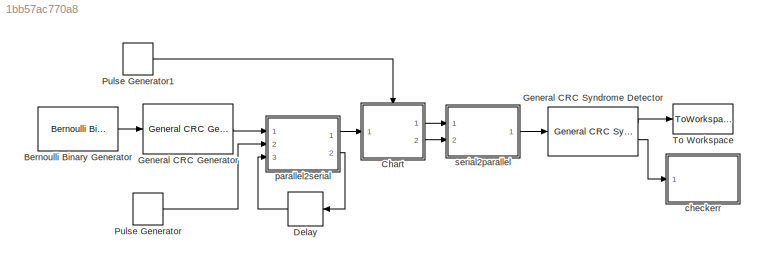
MODEL slx_1bb57ac770a8
KIND model
BLOCK [Reference] Bernoulli Binary Generator  REF=commrandsrc2/Bernoulli Binary
Generator
  P = 0.5
  Ports = [0, 1]
  SourceBlock = commrandsrc2/Bernoulli Binary\nGenerator
  SourceType = Bernoulli Binary Generator
  Ts = 1
  frameBased = on
  orient = off
  outDataType = double
  sampPerFrame = 64
  seed = 61
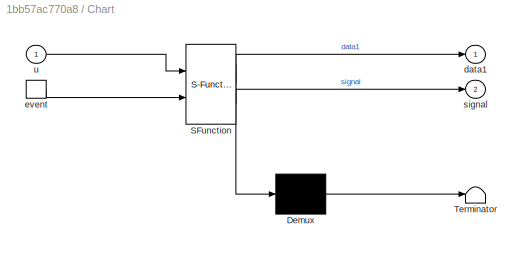
BLOCK [SubSystem] Chart
  ErrorFcn = Stateflow.Translate.translate
  FunctionWithSeparateData = off
  MaskHideContents = off
  MinAlgLoopOccurrences = off
  Opaque = off
  PermitHierarchicalResolution = ExplicitOnly
  Ports = [1, 2, 0, 1]
  PropExecContextOutsideSubsystem = off
  RTWSystemCode = Auto
  RequestExecContextInheritance = off
  SFBlockType = Chart
  TreatAsAtomicUnit = on
BLOCK [Demux] Chart/ Demux 
  Outputs = 1
  Ports = [1, 1]
BLOCK [S-Function] Chart/ SFunction 
  EnableBusSupport = on
  FunctionName = sf_sfun
  PortCounts = [2 3]
  Ports = [2, 3]
  Tag = Stateflow S-Function serialreceiver 1
BLOCK [Terminator] Chart/ Terminator 
BLOCK [Outport] Chart/data1
  IconDisplay = Port number
BLOCK [TriggerPort] Chart/event
  Ports = [0, 1]
  ShowOutputPort = on
  StatesWhenEnabling = held
BLOCK [Outport] Chart/signal
  IconDisplay = Port number
  Port = 2
BLOCK [Inport] Chart/u
  IconDisplay = Port number
BLOCK [Delay] Delay
  DelayLength = 1
  InputPortMap = u0
  Ports = [1, 1]
BLOCK [Reference] General CRC Generator  REF=commcrc2/General CRC
Generator
  Ports = [1, 1]
  SourceBlock = commcrc2/General CRC\nGenerator
  SourceType = General CRC Generator
  directMethod = off
  finalXOR = 0
  genPoly = [1 0 0 0 1 0 0 0 0 0 0 1 0 0 0 0 1]
  iniStates = 0
  numChecksums = 1
  reflectChecksums = off
  reflectInputBytes = off
BLOCK [Reference] General CRC Syndrome Detector  REF=commcrc2/General CRC
Syndrome
Detector
  Ports = [1, 2]
  SourceBlock = commcrc2/General CRC\nSyndrome\nDetector
  SourceType = General CRC Syndrome Detector
  directMethod = off
  finalXOR = 0
  genPoly = [1 0 0 0 1 0 0 0 0 0 0 1 0 0 0 0 1]
  iniStates = 0
  numChecksums = 1
  reflectChecksums = off
  reflectInputBytes = off
BLOCK [DiscretePulseGenerator] Pulse Generator
  Period = 300
  PhaseDelay = 10
  Ports = [0, 1]
  SampleTime = 0.01
BLOCK [DiscretePulseGenerator] Pulse Generator1
  Ports = [0, 1]
  SampleTime = 0.005
BLOCK [ToWorkspace] To Workspace
  MaxDataPoints = inf
  Ports = [1]
  SampleTime = -1
  SaveFormat = Timeseries
  VariableName = received
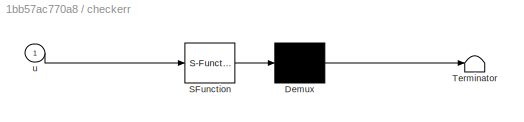
BLOCK [SubSystem] checkerr
  ErrorFcn = Stateflow.Translate.translate
  FunctionWithSeparateData = off
  MaskHideContents = off
  MinAlgLoopOccurrences = off
  Opaque = off
  PermitHierarchicalResolution = ExplicitOnly
  Ports = [1]
  PropExecContextOutsideSubsystem = off
  RTWSystemCode = Auto
  RequestExecContextInheritance = off
  SFBlockType = MATLAB Function
  TreatAsAtomicUnit = on
BLOCK [Demux] checkerr/ Demux 
  Outputs = 1
  Ports = [1, 1]
BLOCK [S-Function] checkerr/ SFunction 
  EnableBusSupport = on
  FunctionName = sf_sfun
  PortCounts = [1 1]
  Ports = [1, 1]
  Tag = Stateflow S-Function serialreceiver 4
BLOCK [Terminator] checkerr/ Terminator 
BLOCK [Inport] checkerr/u
  IconDisplay = Port number
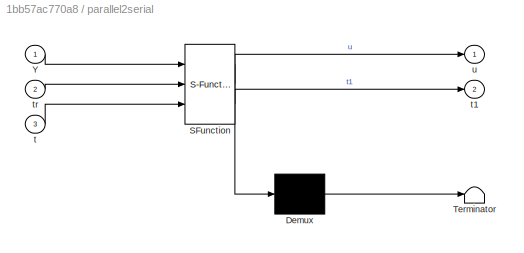
BLOCK [SubSystem] parallel2serial
  ErrorFcn = Stateflow.Translate.translate
  FunctionWithSeparateData = off
  MaskHideContents = off
  MinAlgLoopOccurrences = off
  Opaque = off
  PermitHierarchicalResolution = ExplicitOnly
  Ports = [3, 2]
  PropExecContextOutsideSubsystem = off
  RTWSystemCode = Auto
  RequestExecContextInheritance = off
  SFBlockType = MATLAB Function
  SystemSampleTime = 0.01
  TreatAsAtomicUnit = on
BLOCK [Demux] parallel2serial/ Demux 
  Outputs = 1
  Ports = [1, 1]
BLOCK [S-Function] parallel2serial/ SFunction 
  EnableBusSupport = on
  FunctionName = sf_sfun
  PortCounts = [3 3]
  Ports = [3, 3]
  Tag = Stateflow S-Function serialreceiver 2
BLOCK [Terminator] parallel2serial/ Terminator 
BLOCK [Inport] parallel2serial/Y
  IconDisplay = Port number
BLOCK [Inport] parallel2serial/t
  IconDisplay = Port number
  Port = 3
BLOCK [Outport] parallel2serial/t1
  IconDisplay = Port number
  Port = 2
BLOCK [Inport] parallel2serial/tr
  IconDisplay = Port number
  Port = 2
BLOCK [Outport] parallel2serial/u
  IconDisplay = Port number
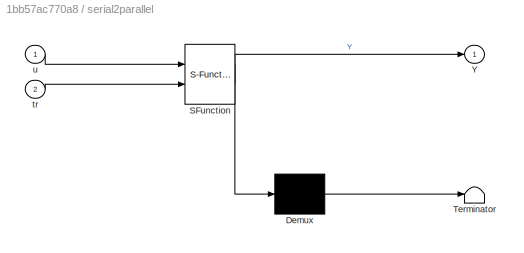
BLOCK [SubSystem] serial2parallel
  ErrorFcn = Stateflow.Translate.translate
  FunctionWithSeparateData = off
  MaskHideContents = off
  MinAlgLoopOccurrences = off
  Opaque = off
  PermitHierarchicalResolution = ExplicitOnly
  Ports = [2, 1]
  PropExecContextOutsideSubsystem = off
  RTWSystemCode = Auto
  RequestExecContextInheritance = off
  SFBlockType = MATLAB Function
  SystemSampleTime = 0.01
  TreatAsAtomicUnit = on
BLOCK [Demux] serial2parallel/ Demux 
  Outputs = 1
  Ports = [1, 1]
BLOCK [S-Function] serial2parallel/ SFunction 
  EnableBusSupport = on
  FunctionName = sf_sfun
  PortCounts = [2 2]
  Ports = [2, 2]
  Tag = Stateflow S-Function serialreceiver 3
BLOCK [Terminator] serial2parallel/ Terminator 
BLOCK [Outport] serial2parallel/Y
  IconDisplay = Port number
BLOCK [Inport] serial2parallel/tr
  IconDisplay = Port number
  Port = 2
BLOCK [Inport] serial2parallel/u
  IconDisplay = Port number
LINE Bernoulli Binary Generator:1 -> General CRC Generator:1
LINE Chart:1 -> serial2parallel:1
LINE Chart:2 -> serial2parallel:2
LINE Delay:1 -> parallel2serial:3
LINE General CRC Generator:1 -> parallel2serial:1
LINE General CRC Syndrome Detector:1 -> To Workspace:1
LINE General CRC Syndrome Detector:2 -> checkerr:1
LINE Pulse Generator1:1 -> Chart:trigger
LINE Pulse Generator:1 -> parallel2serial:2
LINE parallel2serial:1 -> Chart:1
LINE parallel2serial:2 -> Delay:1
LINE serial2parallel:1 -> General CRC Syndrome Detector:1
